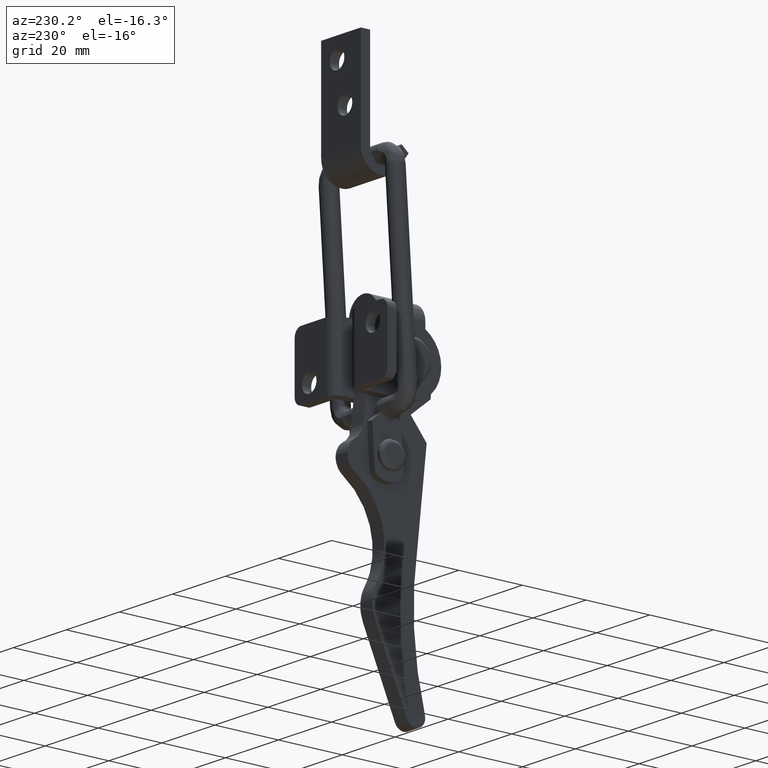
[diagram: clean part render]
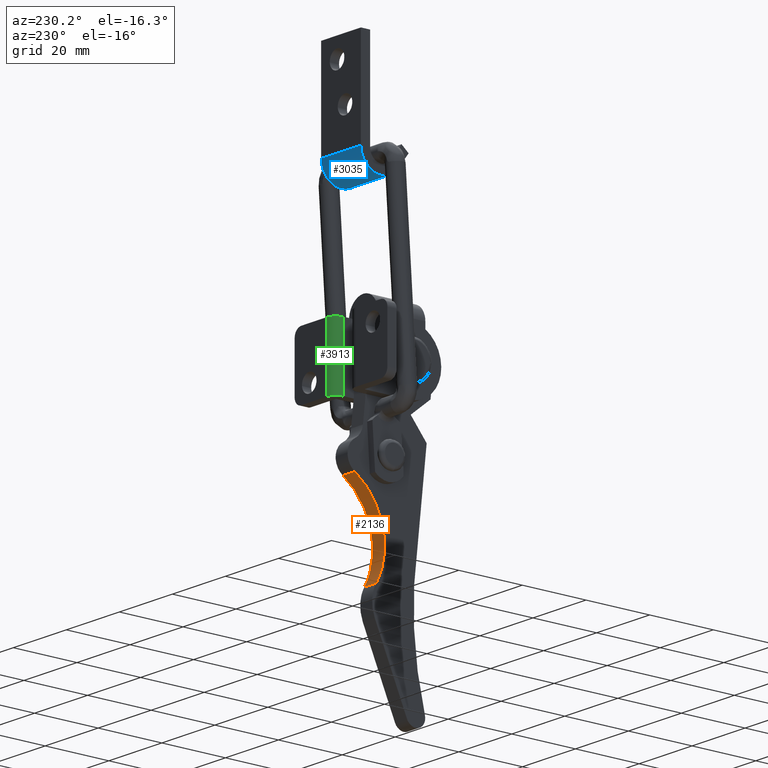
[diagram: same view with three faces highlighted in distinct colors, each labeled with its STEP entity id]
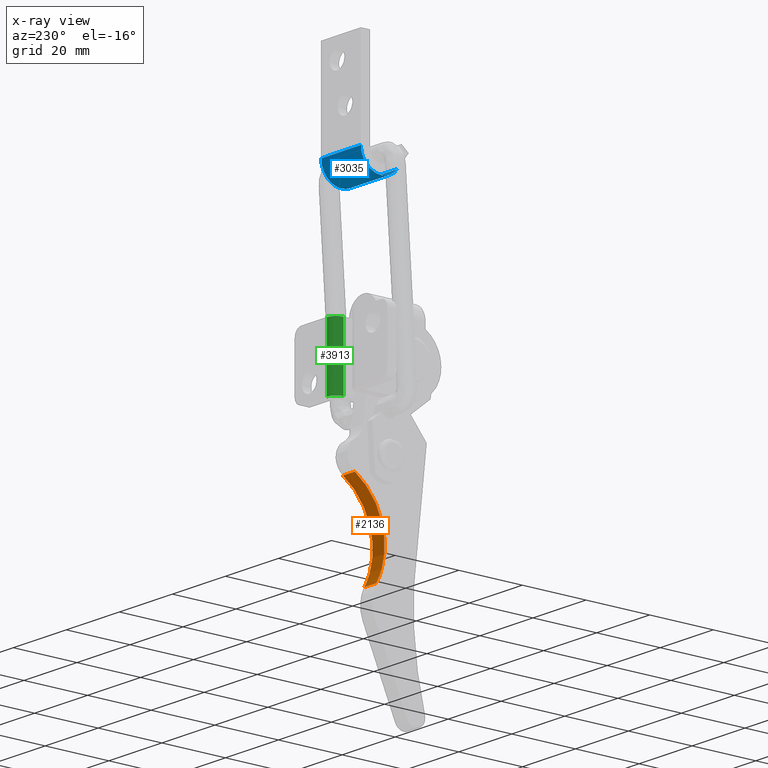
[diagram: x-ray of the same camera — body ghosted, the three highlighted faces saturated]
A machine part, auxiliary view with three faces highlighted in distinct colors.
The next image is the same camera in x-ray (body ghosted, the three faces saturated) — at least one of them is partly hidden behind the body in this view.
Their STEP definitions:

[orange] entity #2136 — the highlighted face is a freeform B-spline surface patch.
#1779=CARTESIAN_POINT('',(-2.249999999999975,14.514439258647220,-30.106138756003102));
#1780=VERTEX_POINT('',#1779);
#1796=CARTESIAN_POINT('',(-2.249999999999975,7.797290296599839,-56.890125543865601));
#1797=VERTEX_POINT('',#1796);
#1798=CARTESIAN_POINT('',(-2.249999999999975,14.514439258647210,-30.106138756003091));
#1799=CARTESIAN_POINT('',(-2.249999999999975,-1.622457926183717,-40.293459978968293));
#1800=CARTESIAN_POINT('',(-2.249999999999975,7.797290296599847,-56.890125543865587));
#1808=(BOUNDED_CURVE()B_SPLINE_CURVE(2,(#1798,#1799,#1800),.UNSPECIFIED.,.F.,.U.)CURVE()GEOMETRIC_REPRESENTATION_ITEM()QUASI_UNIFORM_CURVE()RATIONAL_B_SPLINE_CURVE((1.0,0.723488925955882,1.0))REPRESENTATION_ITEM(''));
#1809=EDGE_CURVE('',#1780,#1797,#1808,.T.);
#1909=CARTESIAN_POINT('',(2.249999999999975,7.797290296599839,-56.890125543865601));
#1910=VERTEX_POINT('',#1909);
#1924=CARTESIAN_POINT('',(2.249999999999975,14.514439258647220,-30.106138756003102));
#1925=VERTEX_POINT('',#1924);
#1926=CARTESIAN_POINT('',(2.249999999999975,14.514439258647210,-30.106138756003091));
#1927=CARTESIAN_POINT('',(2.249999999999975,-1.622457926183717,-40.293459978968293));
#1928=CARTESIAN_POINT('',(2.249999999999975,7.797290296599847,-56.890125543865587));
#1936=(BOUNDED_CURVE()B_SPLINE_CURVE(2,(#1926,#1927,#1928),.UNSPECIFIED.,.F.,.U.)CURVE()GEOMETRIC_REPRESENTATION_ITEM()QUASI_UNIFORM_CURVE()RATIONAL_B_SPLINE_CURVE((1.0,0.723488925955882,1.0))REPRESENTATION_ITEM(''));
#1937=EDGE_CURVE('',#1925,#1910,#1936,.T.);
#2102=CARTESIAN_POINT('',(2.249999999999975,7.797290296599839,-56.890125543865601));
#2103=CARTESIAN_POINT('',(-2.249999999999975,7.797290296599839,-56.890125543865601));
#2104=QUASI_UNIFORM_CURVE('',1,(#2102,#2103),.UNSPECIFIED.,.F.,.U.);
#2105=EDGE_CURVE('',#1910,#1797,#2104,.T.);
#2112=CARTESIAN_POINT('',(2.362499999999974,14.662427746854741,-30.013613321548480));
#2113=CARTESIAN_POINT('',(-2.365312499999974,14.662427746854741,-30.013613321548480));
#2114=CARTESIAN_POINT('',(2.362499999999975,-2.641361850094225,-40.727566283790281));
#2115=CARTESIAN_POINT('',(-2.365312499999974,-2.641361850094225,-40.727566283790281));
#2116=CARTESIAN_POINT('',(2.362499999999974,8.372952094168397,-57.841736168123873));
#2117=CARTESIAN_POINT('',(-2.365312499999974,8.372952094168397,-57.841736168123873));
#2125=(BOUNDED_SURFACE()B_SPLINE_SURFACE(1,2,((#2112,#2114,#2116),(#2113,#2115,#2117)),.UNSPECIFIED.,.F.,.F.,.U.)B_SPLINE_SURFACE_WITH_KNOTS((2,2),(3,3),(0.0,4.727812499999949),(0.0,33.546784140670923),.UNSPECIFIED.)GEOMETRIC_REPRESENTATION_ITEM()RATIONAL_B_SPLINE_SURFACE(((1.0,0.700909264299851,1.0),(1.0,0.700909264299851,1.0)))REPRESENTATION_ITEM('')SURFACE());
#2126=ORIENTED_EDGE('',*,*,#1809,.F.);
#2127=CARTESIAN_POINT('',(2.249999999999975,14.514439258647220,-30.106138756003102));
#2128=CARTESIAN_POINT('',(-2.249999999999975,14.514439258647220,-30.106138756003102));
#2129=QUASI_UNIFORM_CURVE('',1,(#2127,#2128),.UNSPECIFIED.,.F.,.U.);
#2130=EDGE_CURVE('',#1925,#1780,#2129,.T.);
#2131=ORIENTED_EDGE('',*,*,#2130,.F.);
#2132=ORIENTED_EDGE('',*,*,#1937,.T.);
#2133=ORIENTED_EDGE('',*,*,#2105,.T.);
#2134=EDGE_LOOP('',(#2126,#2131,#2132,#2133));
#2135=FACE_OUTER_BOUND('',#2134,.T.);
#2136=ADVANCED_FACE('',(#2135),#2125,.F.);

[blue] entity #3035 — the highlighted face is a freeform B-spline surface patch.
#2744=CARTESIAN_POINT('',(-7.500000000000000,17.0,50.400677821676297));
#2745=VERTEX_POINT('',#2744);
#2751=CARTESIAN_POINT('',(-7.500000000000000,5.509998286275070,46.521002248348502));
#2752=VERTEX_POINT('',#2751);
#2753=CARTESIAN_POINT('',(-7.500000000000000,5.509998286275017,46.521002248348459));
#2754=CARTESIAN_POINT('',(-7.500000000000000,8.294872167030395,42.867342926160852));
#2755=CARTESIAN_POINT('',(-7.500000000000000,12.647436083515201,44.337015109757047));
#2756=CARTESIAN_POINT('',(-7.500000000000000,16.999999999999996,45.806687293353257));
#2757=CARTESIAN_POINT('',(-7.500000000000000,17.0,50.400677821676297));
#2765=(BOUNDED_CURVE()B_SPLINE_CURVE(2,(#2753,#2754,#2755,#2756,#2757),.UNSPECIFIED.,.F.,.U.)B_SPLINE_CURVE_WITH_KNOTS((3,2,3),(0.0,0.500000000000000,1.0),.UNSPECIFIED.)CURVE()GEOMETRIC_REPRESENTATION_ITEM()RATIONAL_B_SPLINE_CURVE((1.0,0.812376725432619,1.0,0.812376725432619,1.0))REPRESENTATION_ITEM(''));
#2766=EDGE_CURVE('',#2752,#2745,#2765,.T.);
#2866=CARTESIAN_POINT('',(7.500000000000000,5.509998286275070,46.521002248348502));
#2867=VERTEX_POINT('',#2866);
#2873=CARTESIAN_POINT('',(7.500000000000000,17.0,50.400677821676297));
#2874=VERTEX_POINT('',#2873);
#2875=CARTESIAN_POINT('',(7.500000000000000,5.509998286275017,46.521002248348459));
#2876=CARTESIAN_POINT('',(7.500000000000000,8.294872167030395,42.867342926160852));
#2877=CARTESIAN_POINT('',(7.500000000000000,12.647436083515201,44.337015109757047));
#2878=CARTESIAN_POINT('',(7.500000000000000,16.999999999999996,45.806687293353257));
#2879=CARTESIAN_POINT('',(7.500000000000000,17.0,50.400677821676297));
#2887=(BOUNDED_CURVE()B_SPLINE_CURVE(2,(#2875,#2876,#2877,#2878,#2879),.UNSPECIFIED.,.F.,.U.)B_SPLINE_CURVE_WITH_KNOTS((3,2,3),(0.0,0.500000000000000,1.0),.UNSPECIFIED.)CURVE()GEOMETRIC_REPRESENTATION_ITEM()RATIONAL_B_SPLINE_CURVE((1.0,0.812376725432619,1.0,0.812376725432619,1.0))REPRESENTATION_ITEM(''));
#2888=EDGE_CURVE('',#2867,#2874,#2887,.T.);
#2997=CARTESIAN_POINT('',(7.500000000000000,5.509998286275070,46.521002248348502));
#2998=CARTESIAN_POINT('',(-7.500000000000000,5.509998286275070,46.521002248348502));
#2999=QUASI_UNIFORM_CURVE('',1,(#2997,#2998),.UNSPECIFIED.,.F.,.U.);
#3000=EDGE_CURVE('',#2867,#2752,#2999,.T.);
#3007=CARTESIAN_POINT('',(7.875000000000001,5.389660682519557,46.684178905126302));
#3008=CARTESIAN_POINT('',(-7.884375000000001,5.389660682519557,46.684178905126302));
#3009=CARTESIAN_POINT('',(7.875000000000001,8.215752129014135,42.722144821679066));
#3010=CARTESIAN_POINT('',(-7.884375000000001,8.215752129014135,42.722144821679066));
#3011=CARTESIAN_POINT('',(7.875000000000001,12.788928917284270,44.386645048646500));
#3012=CARTESIAN_POINT('',(-7.884375000000001,12.788928917284270,44.386645048646500));
#3013=CARTESIAN_POINT('',(7.875000000000001,17.362105705554402,46.051145275613948));
#3014=CARTESIAN_POINT('',(-7.884375000000001,17.362105705554402,46.051145275613948));
#3015=CARTESIAN_POINT('',(7.875000000000001,16.980270935892008,50.902816034334514));
#3016=CARTESIAN_POINT('',(-7.884375000000001,16.980270935892008,50.902816034334514));
#3024=(BOUNDED_SURFACE()B_SPLINE_SURFACE(1,2,((#3007,#3009,#3011,#3013,#3015),(#3008,#3010,#3012,#3014,#3016)),.UNSPECIFIED.,.F.,.F.,.U.)B_SPLINE_SURFACE_WITH_KNOTS((2,2),(3,2,3),(0.0,15.759375000000000),(0.0,8.627788873302977,17.255577746605962),.UNSPECIFIED.)GEOMETRIC_REPRESENTATION_ITEM()RATIONAL_B_SPLINE_SURFACE(((1.0,0.796002002534622,1.0,0.796002002534622,1.0),(1.0,0.796002002534622,1.0,0.796002002534622,1.0)))REPRESENTATION_ITEM('')SURFACE());
#3025=ORIENTED_EDGE('',*,*,#2766,.T.);
#3026=CARTESIAN_POINT('',(7.500000000000000,17.0,50.400677821676297));
#3027=CARTESIAN_POINT('',(-7.500000000000000,17.0,50.400677821676297));
#3028=QUASI_UNIFORM_CURVE('',1,(#3026,#3027),.UNSPECIFIED.,.F.,.U.);
#3029=EDGE_CURVE('',#2874,#2745,#3028,.T.);
#3030=ORIENTED_EDGE('',*,*,#3029,.F.);
#3031=ORIENTED_EDGE('',*,*,#2888,.F.);
#3032=ORIENTED_EDGE('',*,*,#3000,.T.);
#3033=EDGE_LOOP('',(#3025,#3030,#3031,#3032));
#3034=FACE_OUTER_BOUND('',#3033,.T.);
#3035=ADVANCED_FACE('',(#3034),#3024,.T.);

[green] entity #3913 — the highlighted face is a freeform B-spline surface patch.
#3853=CARTESIAN_POINT('',(2.500993757570885,14.024086849907160,-10.500000000000000));
#3854=CARTESIAN_POINT('',(2.500993757570885,14.024086849907160,10.512499999999999));
#3855=CARTESIAN_POINT('',(2.418149091531625,17.187797006922949,-10.500000000000002));
#3856=CARTESIAN_POINT('',(2.418149091531625,17.187797006922949,10.512499999999999));
#3857=CARTESIAN_POINT('',(5.577040764651082,16.994590915423419,-10.500000000000000));
#3858=CARTESIAN_POINT('',(5.577040764651082,16.994590915423419,10.512499999999999));
#3866=(BOUNDED_SURFACE()B_SPLINE_SURFACE(1,2,((#3853,#3855,#3857),(#3854,#3856,#3858)),.UNSPECIFIED.,.F.,.F.,.U.)B_SPLINE_SURFACE_WITH_KNOTS((2,2),(3,3),(0.0,21.012499999999999),(0.0,5.104122158345269),.UNSPECIFIED.)GEOMETRIC_REPRESENTATION_ITEM()RATIONAL_B_SPLINE_SURFACE(((1.0,0.675590207615660,1.0),(1.0,0.675590207615660,1.0)))REPRESENTATION_ITEM('')SURFACE());
#3867=CARTESIAN_POINT('',(5.400000000000000,17.0,10.0));
#3868=VERTEX_POINT('',#3867);
#3869=CARTESIAN_POINT('',(2.500000000000000,14.100000000000000,10.0));
#3870=VERTEX_POINT('',#3869);
#3871=CARTESIAN_POINT('',(5.400000000000000,17.0,10.0));
#3872=CARTESIAN_POINT('',(2.500000000000000,17.000000000000004,10.000000000000002));
#3873=CARTESIAN_POINT('',(2.500000000000000,14.100000000000000,10.0));
#3881=(BOUNDED_CURVE()B_SPLINE_CURVE(2,(#3871,#3872,#3873),.UNSPECIFIED.,.F.,.U.)CURVE()GEOMETRIC_REPRESENTATION_ITEM()QUASI_UNIFORM_CURVE()RATIONAL_B_SPLINE_CURVE((1.0,0.707106781186548,1.0))REPRESENTATION_ITEM(''));
#3882=EDGE_CURVE('',#3868,#3870,#3881,.T.);
#3883=ORIENTED_EDGE('',*,*,#3882,.F.);
#3884=CARTESIAN_POINT('',(5.400000000000000,17.0,-10.0));
#3885=VERTEX_POINT('',#3884);
#3886=CARTESIAN_POINT('',(5.400000000000000,17.0,-10.0));
#3887=CARTESIAN_POINT('',(5.400000000000000,17.0,10.0));
#3888=QUASI_UNIFORM_CURVE('',1,(#3886,#3887),.UNSPECIFIED.,.F.,.U.);
#3889=EDGE_CURVE('',#3885,#3868,#3888,.T.);
#3890=ORIENTED_EDGE('',*,*,#3889,.F.);
#3891=CARTESIAN_POINT('',(2.500000000000000,14.100000000000000,-10.0));
#3892=VERTEX_POINT('',#3891);
#3893=CARTESIAN_POINT('',(2.500000000000000,14.100000000000000,-10.0));
#3894=CARTESIAN_POINT('',(2.500000000000000,17.000000000000004,-10.000000000000002));
#3895=CARTESIAN_POINT('',(5.400000000000000,17.0,-10.0));
#3903=(BOUNDED_CURVE()B_SPLINE_CURVE(2,(#3893,#3894,#3895),.UNSPECIFIED.,.F.,.U.)CURVE()GEOMETRIC_REPRESENTATION_ITEM()QUASI_UNIFORM_CURVE()RATIONAL_B_SPLINE_CURVE((1.0,0.707106781186548,1.0))REPRESENTATION_ITEM(''));
#3904=EDGE_CURVE('',#3892,#3885,#3903,.T.);
#3905=ORIENTED_EDGE('',*,*,#3904,.F.);
#3906=CARTESIAN_POINT('',(2.500000000000000,14.100000000000000,10.0));
#3907=CARTESIAN_POINT('',(2.500000000000000,14.100000000000000,-10.0));
#3908=QUASI_UNIFORM_CURVE('',1,(#3906,#3907),.UNSPECIFIED.,.F.,.U.);
#3909=EDGE_CURVE('',#3870,#3892,#3908,.T.);
#3910=ORIENTED_EDGE('',*,*,#3909,.F.);
#3911=EDGE_LOOP('',(#3883,#3890,#3905,#3910));
#3912=FACE_OUTER_BOUND('',#3911,.T.);
#3913=ADVANCED_FACE('',(#3912),#3866,.T.);